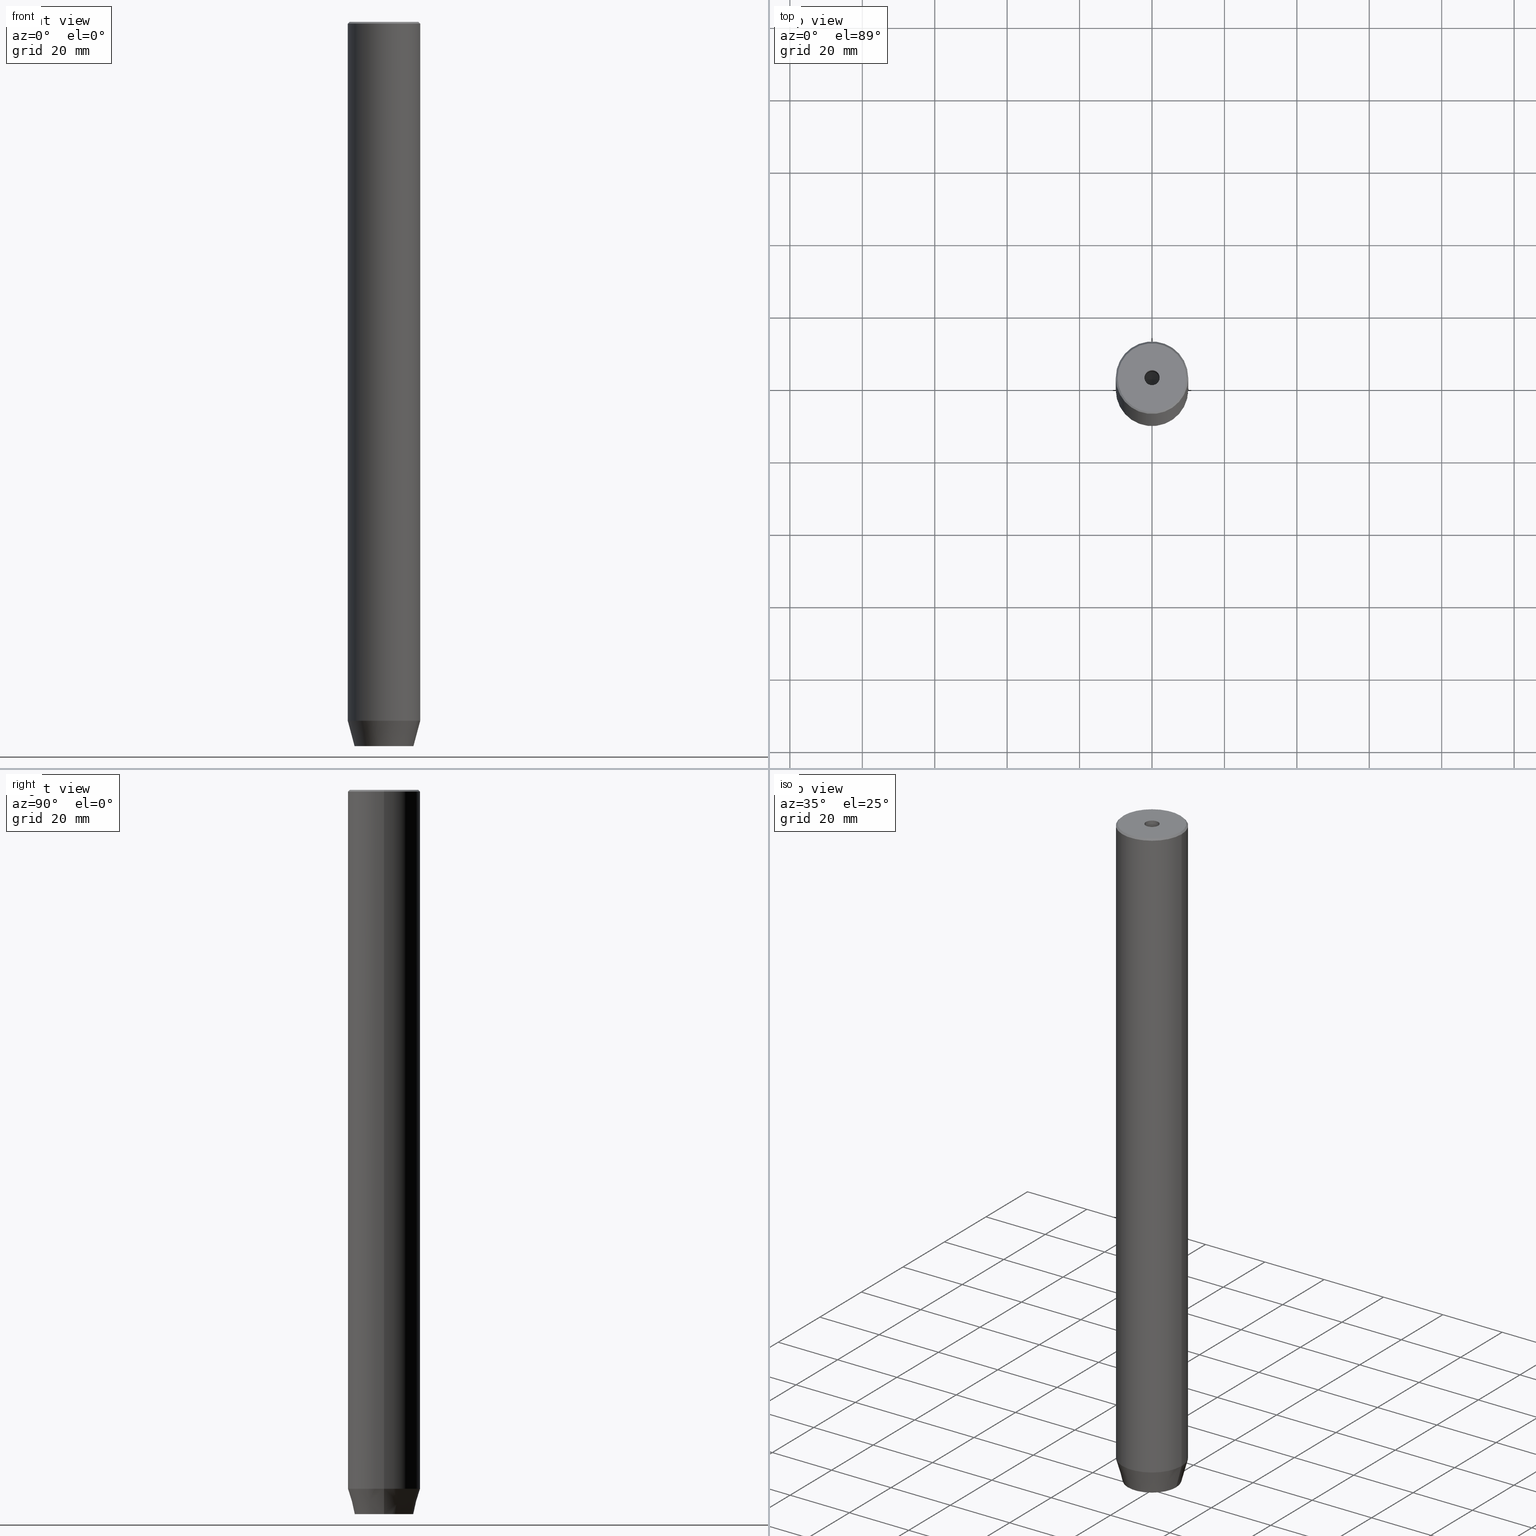
[diagram: canonical four-view strip — front | top / right | iso, engineering-drawing reading convention]
A machine part, canonical four-view strip (front | top / right | iso — engineering-drawing reading convention). The complete STEP part file that produces these views, byte-faithful:
ISO-10303-21;
HEADER;
FILE_DESCRIPTION (( 'STEP AP203' ),
    '1' );
FILE_NAME ('70f7.STEP',
    '2024-01-02T19:03:45',
    ( '' ),
    ( '' ),
    'SwSTEP 2.0',
    'SolidWorks 2019',
    '' );
FILE_SCHEMA (( 'CONFIG_CONTROL_DESIGN' ));
ENDSEC;

DATA;
#1 = LOCAL_TIME ( 20, 3, 45.00000000000000000, #302 ) ;
#2 = LINE ( 'NONE', #389, #162 ) ;
#3 = APPROVAL_ROLE ( '' ) ;
#4 = FACE_OUTER_BOUND ( 'NONE', #33, .T. ) ;
#5 = DIRECTION ( 'NONE',  ( 1.000000000000000000, 0.000000000000000000, 0.000000000000000000 ) ) ;
#6 = PERSON_AND_ORGANIZATION_ROLE ( 'design_supplier' ) ;
#7 = VERTEX_POINT ( 'NONE', #228 ) ;
#8 = CARTESIAN_POINT ( 'NONE',  ( 0.000000000000000000, 0.000000000000000000, -0.4999999999999987232 ) ) ;
#9 = PERSON_AND_ORGANIZATION ( #446, #246 ) ;
#10 = DIRECTION ( 'NONE',  ( -0.000000000000000000, -0.000000000000000000, 1.000000000000000000 ) ) ;
#11 = AXIS2_PLACEMENT_3D ( 'NONE', #482, #445, #156 ) ;
#12 = ORIENTED_EDGE ( 'NONE', *, *, #475, .T. ) ;
#13 = AXIS2_PLACEMENT_3D ( 'NONE', #433, #299, #342 ) ;
#14 = LOCAL_TIME ( 20, 3, 45.00000000000000000, #27 ) ;
#15 = CARTESIAN_POINT ( 'NONE',  ( -2.099999999999995648, 2.571758278209436040E-16, -25.00000000000000000 ) ) ;
#16 = DIRECTION ( 'NONE',  ( -0.5000000000000003331, -0.8660254037844385966, 0.000000000000000000 ) ) ;
#17 = LINE ( 'NONE', #119, #415 ) ;
#18 = CARTESIAN_POINT ( 'NONE',  ( 10.00000000000000000, 0.000000000000000000, -0.4999999999999987232 ) ) ;
#19 = CYLINDRICAL_SURFACE ( 'NONE', #546, 10.00000000000000000 ) ;
#20 = APPROVAL_DATE_TIME ( #406, #358 ) ;
#21 = DIRECTION ( 'NONE',  ( 0.8571673007021108903, 0.000000000000000000, 0.5150380749100565980 ) ) ;
#22 = EDGE_CURVE ( 'NONE', #509, #370, #180, .T. ) ;
#23 = APPROVAL_ROLE ( '' ) ;
#24 = LINE ( 'NONE', #203, #257 ) ;
#25 = LINE ( 'NONE', #436, #183 ) ;
#26 = CARTESIAN_POINT ( 'NONE',  ( 4.000000000000000000, 2.309401076758503368, -200.0000000000000000 ) ) ;
#27 = COORDINATED_UNIVERSAL_TIME_OFFSET ( 1, 0, .AHEAD. ) ;
#28 = AXIS2_PLACEMENT_3D ( 'NONE', #349, #564, #307 ) ;
#29 = LINE ( 'NONE', #393, #234 ) ;
#30 = DIRECTION ( 'NONE',  ( -0.000000000000000000, -0.000000000000000000, 1.000000000000000000 ) ) ;
#31 = FACE_OUTER_BOUND ( 'NONE', #182, .T. ) ;
#32 = ORIENTED_EDGE ( 'NONE', *, *, #518, .T. ) ;
#33 = EDGE_LOOP ( 'NONE', ( #412, #461, #541, #139 ) ) ;
#34 = VECTOR ( 'NONE', #35, 1000.000000000000000 ) ;
#35 = DIRECTION ( 'NONE',  ( -0.000000000000000000, -0.000000000000000000, -1.000000000000000000 ) ) ;
#36 = ADVANCED_FACE ( 'NONE', ( #4 ), #188, .F. ) ;
#37 = DIRECTION ( 'NONE',  ( 1.000000000000000000, 0.000000000000000000, 0.000000000000000000 ) ) ;
#38 = ORIENTED_EDGE ( 'NONE', *, *, #164, .T. ) ;
#39 = ORIENTED_EDGE ( 'NONE', *, *, #83, .F. ) ;
#40 = ORIENTED_EDGE ( 'NONE', *, *, #324, .F. ) ;
#41 = AXIS2_PLACEMENT_3D ( 'NONE', #519, #64, #391 ) ;
#42 = CC_DESIGN_APPROVAL ( #248, ( #336 ) ) ;
#43 = ORIENTED_EDGE ( 'NONE', *, *, #518, .F. ) ;
#44 = VERTEX_POINT ( 'NONE', #18 ) ;
#45 = ORIENTED_EDGE ( 'NONE', *, *, #221, .F. ) ;
#46 = EDGE_CURVE ( 'NONE', #434, #309, #534, .T. ) ;
#47 = LINE ( 'NONE', #189, #388 ) ;
#48 = ORIENTED_EDGE ( 'NONE', *, *, #46, .F. ) ;
#49 = LINE ( 'NONE', #474, #76 ) ;
#50 = EDGE_LOOP ( 'NONE', ( #457, #103, #423, #40 ) ) ;
#51 = PRODUCT_DEFINITION_SHAPE ( 'NONE', 'NONE',  #387 ) ;
#52 = CARTESIAN_POINT ( 'NONE',  ( 2.000000000000000888, -3.464101615137754386, -197.2000000000000171 ) ) ;
#53 = VERTEX_POINT ( 'NONE', #569 ) ;
#54 = ORIENTED_EDGE ( 'NONE', *, *, #224, .F. ) ;
#55 = VECTOR ( 'NONE', #444, 1000.000000000000000 ) ;
#56 = CARTESIAN_POINT ( 'NONE',  ( 0.000000000000000000, 0.000000000000000000, 0.000000000000000000 ) ) ;
#57 = ADVANCED_FACE ( 'NONE', ( #153, #213 ), #214, .T. ) ;
#58 = PERSON_AND_ORGANIZATION_ROLE ( 'classification_officer' ) ;
#59 = FACE_OUTER_BOUND ( 'NONE', #511, .T. ) ;
#60 = ORIENTED_EDGE ( 'NONE', *, *, #46, .T. ) ;
#61 = DIRECTION ( 'NONE',  ( -1.000000000000000000, 0.000000000000000000, 0.000000000000000000 ) ) ;
#62 = DIRECTION ( 'NONE',  ( 1.000000000000000000, 0.000000000000000000, 0.000000000000000000 ) ) ;
#63 = ORIENTED_EDGE ( 'NONE', *, *, #528, .T. ) ;
#64 = DIRECTION ( 'NONE',  ( -0.000000000000000000, -0.000000000000000000, 1.000000000000000000 ) ) ;
#65 = DIRECTION ( 'NONE',  ( -1.000000000000000000, 0.000000000000000000, -0.000000000000000000 ) ) ;
#66 = FACE_OUTER_BOUND ( 'NONE', #227, .T. ) ;
#67 = VECTOR ( 'NONE', #428, 1000.000000000000000 ) ;
#68 = EDGE_LOOP ( 'NONE', ( #32, #319, #192, #417 ) ) ;
#69 = DIRECTION ( 'NONE',  ( 1.000000000000000000, 0.000000000000000000, 0.000000000000000000 ) ) ;
#70 = PLANE ( 'NONE',  #28 ) ;
#71 = ADVANCED_FACE ( 'NONE', ( #163 ), #70, .F. ) ;
#72 = ORIENTED_EDGE ( 'NONE', *, *, #521, .F. ) ;
#73 = DIRECTION ( 'NONE',  ( 0.8660254037844384856, -0.5000000000000002220, 0.000000000000000000 ) ) ;
#74 = CARTESIAN_POINT ( 'NONE',  ( -4.000000000000000000, 0.000000000000000000, -197.2000000000000171 ) ) ;
#75 = DATE_TIME_ROLE ( 'creation_date' ) ;
#76 = VECTOR ( 'NONE', #10, 1000.000000000000000 ) ;
#77 = CC_DESIGN_APPROVAL ( #358, ( #387 ) ) ;
#78 = CARTESIAN_POINT ( 'NONE',  ( -4.000000000000000000, 0.000000000000000000, -197.2000000000000171 ) ) ;
#79 = EDGE_CURVE ( 'NONE', #201, #509, #80, .T. ) ;
#80 = LINE ( 'NONE', #395, #448 ) ;
#81 = CARTESIAN_POINT ( 'NONE',  ( 2.099999999999996980, 0.000000000000000000, 0.000000000000000000 ) ) ;
#82 = EDGE_LOOP ( 'NONE', ( #106, #330, #151, #38 ) ) ;
#83 = EDGE_CURVE ( 'NONE', #53, #89, #453, .T. ) ;
#84 = DIRECTION ( 'NONE',  ( 1.000000000000000000, 0.000000000000000000, 0.000000000000000000 ) ) ;
#85 = AXIS2_PLACEMENT_3D ( 'NONE', #167, #409, #269 ) ;
#86 = ORIENTED_EDGE ( 'NONE', *, *, #252, .T. ) ;
#87 = DIRECTION ( 'NONE',  ( 1.000000000000000000, 0.000000000000000000, 0.000000000000000000 ) ) ;
#88 = LINE ( 'NONE', #416, #135 ) ;
#89 = VERTEX_POINT ( 'NONE', #210 ) ;
#90 = DIRECTION ( 'NONE',  ( 0.8660254037844387076, 0.5000000000000001110, 0.000000000000000000 ) ) ;
#91 = ORIENTED_EDGE ( 'NONE', *, *, #537, .F. ) ;
#92 = CIRCLE ( 'NONE', #410, 10.00000000000000000 ) ;
#93 = ORIENTED_EDGE ( 'NONE', *, *, #137, .F. ) ;
#94 = AXIS2_PLACEMENT_3D ( 'NONE', #355, #297, #572 ) ;
#95 = LOCAL_TIME ( 20, 3, 45.00000000000000000, #542 ) ;
#96 = ADVANCED_FACE ( 'NONE', ( #405 ), #194, .T. ) ;
#97 = ORIENTED_EDGE ( 'NONE', *, *, #462, .T. ) ;
#98 = DIRECTION ( 'NONE',  ( -0.8660254037844384856, 0.5000000000000002220, 0.000000000000000000 ) ) ;
#99 = VERTEX_POINT ( 'NONE', #523 ) ;
#100 = ORIENTED_EDGE ( 'NONE', *, *, #508, .T. ) ;
#101 = EDGE_CURVE ( 'NONE', #53, #44, #24, .T. ) ;
#102 = DIRECTION ( 'NONE',  ( 0.8660254037844384856, 0.5000000000000002220, 0.000000000000000000 ) ) ;
#103 = ORIENTED_EDGE ( 'NONE', *, *, #352, .T. ) ;
#104 = CIRCLE ( 'NONE', #449, 2.099999999999995648 ) ;
#105 = DIRECTION ( 'NONE',  ( -1.000000000000000000, 0.000000000000000000, -0.000000000000000000 ) ) ;
#106 = ORIENTED_EDGE ( 'NONE', *, *, #521, .T. ) ;
#107 = MECHANICAL_CONTEXT ( 'NONE', #318, 'mechanical' ) ;
#108 = DIRECTION ( 'NONE',  ( -0.000000000000000000, -0.000000000000000000, 1.000000000000000000 ) ) ;
#109 = CARTESIAN_POINT ( 'NONE',  ( -4.000000000000000000, 2.309401076758503368, -200.0000000000000000 ) ) ;
#110 = APPROVAL_DATE_TIME ( #136, #450 ) ;
#111 = CARTESIAN_POINT ( 'NONE',  ( 0.000000000000000000, 0.000000000000000000, -197.2000000000000171 ) ) ;
#112 = CARTESIAN_POINT ( 'NONE',  ( 0.000000000000000000, 0.000000000000000000, -200.0000000000000000 ) ) ;
#113 = ORIENTED_EDGE ( 'NONE', *, *, #241, .F. ) ;
#114 = CYLINDRICAL_SURFACE ( 'NONE', #41, 2.099999999999996980 ) ;
#115 = ADVANCED_FACE ( 'NONE', ( #348 ), #301, .F. ) ;
#116 = FACE_OUTER_BOUND ( 'NONE', #148, .T. ) ;
#117 = AXIS2_PLACEMENT_3D ( 'NONE', #376, #368, #61 ) ;
#118 = DATE_AND_TIME ( #158, #1 ) ;
#119 = CARTESIAN_POINT ( 'NONE',  ( -4.000000000000000000, 2.309401076758503368, -197.2000000000000171 ) ) ;
#120 = CARTESIAN_POINT ( 'NONE',  ( 2.000000000000000444, 3.464101615137754386, -197.2000000000000171 ) ) ;
#121 = LINE ( 'NONE', #159, #411 ) ;
#122 = DIRECTION ( 'NONE',  ( 1.000000000000000000, 0.000000000000000000, 0.000000000000000000 ) ) ;
#123 = EDGE_CURVE ( 'NONE', #44, #517, #92, .T. ) ;
#124 = CARTESIAN_POINT ( 'NONE',  ( 2.000000000000000888, -3.464101615137754386, -200.0000000000000000 ) ) ;
#125 = VECTOR ( 'NONE', #426, 1000.000000000000114 ) ;
#126 = VECTOR ( 'NONE', #327, 1000.000000000000000 ) ;
#127 = CYLINDRICAL_SURFACE ( 'NONE', #354, 10.00000000000000000 ) ;
#128 = FACE_OUTER_BOUND ( 'NONE', #317, .T. ) ;
#129 = ORIENTED_EDGE ( 'NONE', *, *, #131, .F. ) ;
#130 = FACE_OUTER_BOUND ( 'NONE', #451, .T. ) ;
#131 = EDGE_CURVE ( 'NONE', #378, #343, #477, .T. ) ;
#132 = DIRECTION ( 'NONE',  ( -0.000000000000000000, -0.000000000000000000, 1.000000000000000000 ) ) ;
#133 = CARTESIAN_POINT ( 'NONE',  ( 2.168404344971008868E-16, 4.618802153517005848, -200.0000000000000000 ) ) ;
#134 = CARTESIAN_POINT ( 'NONE',  ( 4.000000000000000000, -2.309401076758502480, -200.0000000000000000 ) ) ;
#135 = VECTOR ( 'NONE', #90, 999.9999999999998863 ) ;
#136 = DATE_AND_TIME ( #147, #95 ) ;
#137 = EDGE_CURVE ( 'NONE', #343, #378, #374, .T. ) ;
#138 = SECURITY_CLASSIFICATION_LEVEL ( 'unclassified' ) ;
#139 = ORIENTED_EDGE ( 'NONE', *, *, #500, .T. ) ;
#140 = LINE ( 'NONE', #322, #566 ) ;
#141 = VERTEX_POINT ( 'NONE', #394 ) ;
#142 = ORIENTED_EDGE ( 'NONE', *, *, #360, .F. ) ;
#143 = ADVANCED_FACE ( 'NONE', ( #300 ), #175, .F. ) ;
#144 = ORIENTED_EDGE ( 'NONE', *, *, #79, .F. ) ;
#145 = PLANE ( 'NONE',  #535 ) ;
#146 = EDGE_LOOP ( 'NONE', ( #60, #218, #328, #466 ) ) ;
#147 = CALENDAR_DATE ( 2024, 2, 1 ) ;
#148 = EDGE_LOOP ( 'NONE', ( #452, #45, #144, #169 ) ) ;
#149 = CARTESIAN_POINT ( 'NONE',  ( -2.000000000000000000, 3.464101615137754830, -197.2000000000000171 ) ) ;
#150 = CIRCLE ( 'NONE', #556, 2.099999999999995648 ) ;
#151 = ORIENTED_EDGE ( 'NONE', *, *, #316, .F. ) ;
#152 = DIRECTION ( 'NONE',  ( -0.000000000000000000, -0.000000000000000000, 1.000000000000000000 ) ) ;
#153 = FACE_BOUND ( 'NONE', #292, .T. ) ;
#154 = EDGE_CURVE ( 'NONE', #309, #274, #155, .T. ) ;
#155 = LINE ( 'NONE', #479, #587 ) ;
#156 = DIRECTION ( 'NONE',  ( 1.000000000000000000, 0.000000000000000000, 0.000000000000000000 ) ) ;
#157 = PLANE ( 'NONE',  #94 ) ;
#158 = CALENDAR_DATE ( 2024, 2, 1 ) ;
#159 = CARTESIAN_POINT ( 'NONE',  ( -9.500000000000008882, 0.000000000000000000, 0.000000000000000000 ) ) ;
#160 = VERTEX_POINT ( 'NONE', #26 ) ;
#161 = DIRECTION ( 'NONE',  ( -0.000000000000000000, -0.000000000000000000, 1.000000000000000000 ) ) ;
#162 = VECTOR ( 'NONE', #329, 1000.000000000000000 ) ;
#163 = FACE_OUTER_BOUND ( 'NONE', #82, .T. ) ;
#164 = EDGE_CURVE ( 'NONE', #359, #177, #17, .T. ) ;
#165 = CARTESIAN_POINT ( 'NONE',  ( 4.000000000000000000, 2.309401076758503368, -197.2000000000000171 ) ) ;
#166 = CARTESIAN_POINT ( 'NONE',  ( -4.000000000000000000, -2.309401076758503368, -197.2000000000000171 ) ) ;
#167 = CARTESIAN_POINT ( 'NONE',  ( 0.000000000000000000, 0.000000000000000000, -200.0000000000000000 ) ) ;
#168 = AXIS2_PLACEMENT_3D ( 'NONE', #365, #132, #84 ) ;
#169 = ORIENTED_EDGE ( 'NONE', *, *, #408, .T. ) ;
#170 = FACE_OUTER_BOUND ( 'NONE', #510, .T. ) ;
#171 = ADVANCED_FACE ( 'NONE', ( #206 ), #114, .F. ) ;
#172 = LINE ( 'NONE', #81, #311 ) ;
#173 = CARTESIAN_POINT ( 'NONE',  ( 0.000000000000000000, 0.000000000000000000, 0.000000000000000000 ) ) ;
#174 = DIRECTION ( 'NONE',  ( 0.000000000000000000, 1.000000000000000000, 0.000000000000000000 ) ) ;
#175 = CONICAL_SURFACE ( 'NONE', #225, 2.099999999999995648, 1.029744258676651647 ) ;
#176 = VERTEX_POINT ( 'NONE', #339 ) ;
#177 = VERTEX_POINT ( 'NONE', #109 ) ;
#178 = ADVANCED_FACE ( 'NONE', ( #293 ), #244, .T. ) ;
#179 = CARTESIAN_POINT ( 'NONE',  ( -4.000000000000000000, -2.309401076758503368, -197.2000000000000171 ) ) ;
#180 = LINE ( 'NONE', #236, #125 ) ;
#181 = CARTESIAN_POINT ( 'NONE',  ( 0.000000000000000000, 0.000000000000000000, -25.00000000000000000 ) ) ;
#182 = EDGE_LOOP ( 'NONE', ( #238, #97, #54, #142 ) ) ;
#183 = VECTOR ( 'NONE', #259, 999.9999999999998863 ) ;
#184 = EDGE_CURVE ( 'NONE', #176, #89, #47, .T. ) ;
#185 = LOCAL_TIME ( 20, 3, 45.00000000000000000, #533 ) ;
#186 = EDGE_LOOP ( 'NONE', ( #113, #386, #455 ) ) ;
#187 = VERTEX_POINT ( 'NONE', #179 ) ;
#188 = PLANE ( 'NONE',  #465 ) ;
#189 = CARTESIAN_POINT ( 'NONE',  ( -10.00000000000000000, 1.224646799147353256E-15, -193.0000000000000000 ) ) ;
#190 = CALENDAR_DATE ( 2024, 2, 1 ) ;
#191 = CARTESIAN_POINT ( 'NONE',  ( 0.000000000000000000, 0.000000000000000000, 0.000000000000000000 ) ) ;
#192 = ORIENTED_EDGE ( 'NONE', *, *, #331, .F. ) ;
#193 = DIRECTION ( 'NONE',  ( 1.000000000000000000, 0.000000000000000000, 0.000000000000000000 ) ) ;
#194 = CONICAL_SURFACE ( 'NONE', #11, 10.00000000000000000, 0.2617993877991500740 ) ;
#195 = AXIS2_PLACEMENT_3D ( 'NONE', #8, #281, #193 ) ;
#196 = DIRECTION ( 'NONE',  ( -0.000000000000000000, -0.000000000000000000, 1.000000000000000000 ) ) ;
#197 = ORIENTED_EDGE ( 'NONE', *, *, #224, .T. ) ;
#198 = DIRECTION ( 'NONE',  ( 1.000000000000000000, 0.000000000000000000, 0.000000000000000000 ) ) ;
#199 = CARTESIAN_POINT ( 'NONE',  ( 0.000000000000000000, 0.000000000000000000, -1.990051048614449116E-16 ) ) ;
#200 = CC_DESIGN_PERSON_AND_ORGANIZATION_ASSIGNMENT ( #563, #6, ( #336 ) ) ;
#201 = VERTEX_POINT ( 'NONE', #551 ) ;
#202 = DIRECTION ( 'NONE',  ( 0.000000000000000000, 0.000000000000000000, -1.000000000000000000 ) ) ;
#203 = CARTESIAN_POINT ( 'NONE',  ( 10.00000000000000000, 0.000000000000000000, 0.000000000000000000 ) ) ;
#204 = LINE ( 'NONE', #120, #524 ) ;
#205 = CALENDAR_DATE ( 2024, 2, 1 ) ;
#206 = FACE_OUTER_BOUND ( 'NONE', #581, .T. ) ;
#207 = VECTOR ( 'NONE', #485, 1000.000000000000114 ) ;
#208 = ADVANCED_FACE ( 'NONE', ( #458 ), #145, .F. ) ;
#209 = CIRCLE ( 'NONE', #539, 9.500000000000008882 ) ;
#210 = CARTESIAN_POINT ( 'NONE',  ( -10.00000000000000000, 1.224646799147353256E-15, -193.0000000000000000 ) ) ;
#211 = AXIS2_PLACEMENT_3D ( 'NONE', #253, #277, #326 ) ;
#212 = PRODUCT_RELATED_PRODUCT_CATEGORY ( 'detail', '', ( #265 ) ) ;
#213 = FACE_OUTER_BOUND ( 'NONE', #447, .T. ) ;
#214 = PLANE ( 'NONE',  #295 ) ;
#215 = ORIENTED_EDGE ( 'NONE', *, *, #360, .T. ) ;
#216 = VECTOR ( 'NONE', #499, 1000.000000000000000 ) ;
#217 = EDGE_CURVE ( 'NONE', #7, #335, #150, .T. ) ;
#218 = ORIENTED_EDGE ( 'NONE', *, *, #226, .F. ) ;
#219 = ADVANCED_BREP_SHAPE_REPRESENTATION ( '70f7', ( #271, #211 ), #488 ) ;
#220 = FACE_OUTER_BOUND ( 'NONE', #586, .T. ) ;
#221 = EDGE_CURVE ( 'NONE', #509, #434, #463, .T. ) ;
#222 = CARTESIAN_POINT ( 'NONE',  ( -4.000000000000000000, 0.000000000000000000, -200.0000000000000000 ) ) ;
#223 = ORIENTED_EDGE ( 'NONE', *, *, #369, .F. ) ;
#224 = EDGE_CURVE ( 'NONE', #517, #44, #573, .T. ) ;
#225 = AXIS2_PLACEMENT_3D ( 'NONE', #346, #526, #558 ) ;
#226 = EDGE_CURVE ( 'NONE', #370, #309, #140, .T. ) ;
#227 = EDGE_LOOP ( 'NONE', ( #233, #239, #197, #366 ) ) ;
#228 = CARTESIAN_POINT ( 'NONE',  ( 2.099999999999995648, 0.000000000000000000, -25.00000000000000000 ) ) ;
#229 = EDGE_CURVE ( 'NONE', #335, #7, #104, .T. ) ;
#230 = ORIENTED_EDGE ( 'NONE', *, *, #312, .F. ) ;
#231 = PERSON_AND_ORGANIZATION_ROLE ( 'design_owner' ) ;
#232 = DIRECTION ( 'NONE',  ( -0.000000000000000000, -0.000000000000000000, 1.000000000000000000 ) ) ;
#233 = ORIENTED_EDGE ( 'NONE', *, *, #83, .T. ) ;
#234 = VECTOR ( 'NONE', #21, 1000.000000000000114 ) ;
#235 = PERSON_AND_ORGANIZATION ( #446, #246 ) ;
#236 = CARTESIAN_POINT ( 'NONE',  ( 2.000000000000000888, -3.464101615137754386, -197.2000000000000171 ) ) ;
#237 = CARTESIAN_POINT ( 'NONE',  ( 4.336808689942017736E-16, -4.618802153517006737, -200.0000000000000000 ) ) ;
#238 = ORIENTED_EDGE ( 'NONE', *, *, #298, .F. ) ;
#239 = ORIENTED_EDGE ( 'NONE', *, *, #382, .T. ) ;
#240 = DIRECTION ( 'NONE',  ( 0.5000000000000003331, -0.8660254037844385966, 0.000000000000000000 ) ) ;
#241 = EDGE_CURVE ( 'NONE', #141, #335, #286, .T. ) ;
#242 = LINE ( 'NONE', #553, #67 ) ;
#243 = PLANE ( 'NONE',  #268 ) ;
#244 = CONICAL_SURFACE ( 'NONE', #117, 9.500000000000008882, 0.7853981633974412846 ) ;
#245 = DIRECTION ( 'NONE',  ( 1.000000000000000000, 0.000000000000000000, 0.000000000000000000 ) ) ;
#246 = ORGANIZATION ( 'NEUR�EN�', 'NEUR�EN�', '' ) ;
#247 = DIRECTION ( 'NONE',  ( -0.000000000000000000, -0.000000000000000000, 1.000000000000000000 ) ) ;
#248 = APPROVAL ( #303, 'NEUR�EN�' ) ;
#249 = UNCERTAINTY_MEASURE_WITH_UNIT (LENGTH_MEASURE( 1.000000000000000082E-05 ), #567, 'distance_accuracy_value', 'NONE');
#250 = DIRECTION ( 'NONE',  ( -0.000000000000000000, -0.000000000000000000, -1.000000000000000000 ) ) ;
#251 = CARTESIAN_POINT ( 'NONE',  ( 2.099999999999998757, 0.000000000000000000, -1.990051048614449116E-16 ) ) ;
#252 = EDGE_CURVE ( 'NONE', #370, #187, #380, .T. ) ;
#253 = CARTESIAN_POINT ( 'NONE',  ( 0.000000000000000000, 0.000000000000000000, 0.000000000000000000 ) ) ;
#254 = LINE ( 'NONE', #261, #55 ) ;
#255 = CARTESIAN_POINT ( 'NONE',  ( 0.000000000000000000, 0.000000000000000000, -0.4999999999999987232 ) ) ;
#256 = DIRECTION ( 'NONE',  ( -1.000000000000000000, 0.000000000000000000, 0.000000000000000000 ) ) ;
#257 = VECTOR ( 'NONE', #401, 1000.000000000000000 ) ;
#258 = VECTOR ( 'NONE', #561, 1000.000000000000000 ) ;
#259 = DIRECTION ( 'NONE',  ( 0.7071067811865425767, 8.659560562354874926E-17, -0.7071067811865525687 ) ) ;
#260 = PERSON_AND_ORGANIZATION ( #446, #246 ) ;
#261 = CARTESIAN_POINT ( 'NONE',  ( 10.00000000000000000, 0.000000000000000000, -193.0000000000000000 ) ) ;
#262 = CARTESIAN_POINT ( 'NONE',  ( 0.000000000000000000, 0.000000000000000000, -193.0000000000000000 ) ) ;
#263 = EDGE_CURVE ( 'NONE', #516, #160, #2, .T. ) ;
#264 = ORIENTED_EDGE ( 'NONE', *, *, #252, .F. ) ;
#265 = PRODUCT ( '70f7', '70f7', '', ( #107 ) ) ;
#266 = ORIENTED_EDGE ( 'NONE', *, *, #298, .T. ) ;
#267 = AXIS2_PLACEMENT_3D ( 'NONE', #402, #527, #476 ) ;
#268 = AXIS2_PLACEMENT_3D ( 'NONE', #481, #16, #73 ) ;
#269 = DIRECTION ( 'NONE',  ( 1.000000000000000000, 0.000000000000000000, 0.000000000000000000 ) ) ;
#270 = LINE ( 'NONE', #222, #403 ) ;
#271 = MANIFOLD_SOLID_BREP ( 'Vrt�k z�vitn�ku pro M5 z�vit1', #305 ) ;
#272 = VERTEX_POINT ( 'NONE', #557 ) ;
#273 = ADVANCED_FACE ( 'NONE', ( #469 ), #276, .F. ) ;
#274 = VERTEX_POINT ( 'NONE', #279 ) ;
#275 = AXIS2_PLACEMENT_3D ( 'NONE', #262, #30, #122 ) ;
#276 = CONICAL_SURFACE ( 'NONE', #442, 2.099999999999995648, 1.029744258676651647 ) ;
#277 = DIRECTION ( 'NONE',  ( 0.000000000000000000, 0.000000000000000000, 1.000000000000000000 ) ) ;
#278 = ORIENTED_EDGE ( 'NONE', *, *, #154, .T. ) ;
#279 = CARTESIAN_POINT ( 'NONE',  ( -4.000000000000000000, -2.309401076758503368, -200.0000000000000000 ) ) ;
#280 = ORIENTED_EDGE ( 'NONE', *, *, #184, .T. ) ;
#281 = DIRECTION ( 'NONE',  ( 0.000000000000000000, 0.000000000000000000, -1.000000000000000000 ) ) ;
#282 = DATE_TIME_ROLE ( 'classification_date' ) ;
#283 = FACE_OUTER_BOUND ( 'NONE', #310, .T. ) ;
#284 = ORIENTED_EDGE ( 'NONE', *, *, #585, .F. ) ;
#285 = APPROVAL_STATUS ( 'not_yet_approved' ) ;
#286 = LINE ( 'NONE', #547, #467 ) ;
#287 = PERSON_AND_ORGANIZATION ( #446, #246 ) ;
#288 = DIRECTION ( 'NONE',  ( 0.000000000000000000, 0.000000000000000000, 1.000000000000000000 ) ) ;
#289 = DIRECTION ( 'NONE',  ( 1.000000000000000000, 0.000000000000000000, 0.000000000000000000 ) ) ;
#290 = CARTESIAN_POINT ( 'NONE',  ( 2.000000000000000444, 3.464101615137754386, -197.2000000000000171 ) ) ;
#291 = DATE_AND_TIME ( #484, #14 ) ;
#292 = EDGE_LOOP ( 'NONE', ( #72, #43, #377, #48, #230, #503 ) ) ;
#293 = FACE_OUTER_BOUND ( 'NONE', #338, .T. ) ;
#294 = PERSON_AND_ORGANIZATION ( #446, #246 ) ;
#295 = AXIS2_PLACEMENT_3D ( 'NONE', #489, #435, #65 ) ;
#296 = AXIS2_PLACEMENT_3D ( 'NONE', #199, #161, #473 ) ;
#297 = DIRECTION ( 'NONE',  ( 1.000000000000000000, 0.000000000000000000, -0.000000000000000000 ) ) ;
#298 = EDGE_CURVE ( 'NONE', #459, #272, #504, .T. ) ;
#299 = DIRECTION ( 'NONE',  ( -0.000000000000000000, -0.000000000000000000, 1.000000000000000000 ) ) ;
#300 = FACE_OUTER_BOUND ( 'NONE', #186, .T. ) ;
#301 = PLANE ( 'NONE',  #353 ) ;
#302 = COORDINATED_UNIVERSAL_TIME_OFFSET ( 1, 0, .AHEAD. ) ;
#303 = APPROVAL_STATUS ( 'not_yet_approved' ) ;
#304 = CARTESIAN_POINT ( 'NONE',  ( -10.00000000000000000, 1.224646799147353256E-15, 0.000000000000000000 ) ) ;
#305 = CLOSED_SHELL ( 'NONE', ( #171, #273, #483, #413, #493, #57, #437, #424, #96, #178, #71, #115, #578, #208, #443, #36, #540, #143, #562 ) ) ;
#306 = VECTOR ( 'NONE', #490, 1000.000000000000000 ) ;
#307 = DIRECTION ( 'NONE',  ( -0.8660254037844385966, -0.4999999999999999445, 0.000000000000000000 ) ) ;
#308 = CARTESIAN_POINT ( 'NONE',  ( 0.000000000000000000, 0.000000000000000000, 0.000000000000000000 ) ) ;
#309 = VERTEX_POINT ( 'NONE', #237 ) ;
#310 = EDGE_LOOP ( 'NONE', ( #390, #12, #544, #583, #86, #362 ) ) ;
#311 = VECTOR ( 'NONE', #577, 1000.000000000000000 ) ;
#312 = EDGE_CURVE ( 'NONE', #160, #434, #242, .T. ) ;
#313 = AXIS2_PLACEMENT_3D ( 'NONE', #111, #464, #105 ) ;
#314 = PLANE ( 'NONE',  #333 ) ;
#315 = ORIENTED_EDGE ( 'NONE', *, *, #462, .F. ) ;
#316 = EDGE_CURVE ( 'NONE', #359, #579, #384, .T. ) ;
#317 = EDGE_LOOP ( 'NONE', ( #278, #552, #264, #575 ) ) ;
#318 = APPLICATION_CONTEXT ( 'configuration controlled 3d designs of mechanical parts and assemblies' ) ;
#319 = ORIENTED_EDGE ( 'NONE', *, *, #164, .F. ) ;
#320 = VECTOR ( 'NONE', #98, 1000.000000000000114 ) ;
#321 = LOCAL_TIME ( 20, 3, 45.00000000000000000, #456 ) ;
#322 = CARTESIAN_POINT ( 'NONE',  ( 4.336808689942017736E-16, -4.618802153517006737, -197.2000000000000171 ) ) ;
#323 = ORIENTED_EDGE ( 'NONE', *, *, #324, .T. ) ;
#324 = EDGE_CURVE ( 'NONE', #89, #53, #487, .T. ) ;
#325 = ORIENTED_EDGE ( 'NONE', *, *, #101, .T. ) ;
#326 = DIRECTION ( 'NONE',  ( 1.000000000000000000, 0.000000000000000000, 0.000000000000000000 ) ) ;
#327 = DIRECTION ( 'NONE',  ( -0.000000000000000000, -0.000000000000000000, -1.000000000000000000 ) ) ;
#328 = ORIENTED_EDGE ( 'NONE', *, *, #22, .F. ) ;
#329 = DIRECTION ( 'NONE',  ( 0.8660254037844385966, -0.5000000000000001110, 0.000000000000000000 ) ) ;
#330 = ORIENTED_EDGE ( 'NONE', *, *, #500, .F. ) ;
#331 = EDGE_CURVE ( 'NONE', #187, #359, #438, .T. ) ;
#332 = APPROVAL_ROLE ( '' ) ;
#333 = AXIS2_PLACEMENT_3D ( 'NONE', #308, #498, #87 ) ;
#334 = DIRECTION ( 'NONE',  ( 0.8660254037844387076, 0.5000000000000001110, 0.000000000000000000 ) ) ;
#335 = VERTEX_POINT ( 'NONE', #15 ) ;
#336 = PRODUCT_DEFINITION_FORMATION_WITH_SPECIFIED_SOURCE ( 'LIBOVOLN�', '', #265, .NOT_KNOWN. ) ;
#337 = DIRECTION ( 'NONE',  ( 1.000000000000000000, 0.000000000000000000, 0.000000000000000000 ) ) ;
#338 = EDGE_LOOP ( 'NONE', ( #315, #91, #215, #582 ) ) ;
#339 = CARTESIAN_POINT ( 'NONE',  ( -8.124355652982135467, 1.109796706851640556E-15, -200.0000000000000000 ) ) ;
#340 = PLANE ( 'NONE',  #313 ) ;
#341 = PERSON_AND_ORGANIZATION ( #446, #246 ) ;
#342 = DIRECTION ( 'NONE',  ( 1.000000000000000000, 0.000000000000000000, 0.000000000000000000 ) ) ;
#343 = VERTEX_POINT ( 'NONE', #251 ) ;
#344 = DIRECTION ( 'NONE',  ( -0.8660254037844384856, 0.5000000000000002220, 0.000000000000000000 ) ) ;
#345 = ORIENTED_EDGE ( 'NONE', *, *, #418, .F. ) ;
#346 = CARTESIAN_POINT ( 'NONE',  ( 0.000000000000000000, 0.000000000000000000, -25.00000000000000000 ) ) ;
#347 = CC_DESIGN_SECURITY_CLASSIFICATION ( #536, ( #336 ) ) ;
#348 = FACE_OUTER_BOUND ( 'NONE', #68, .T. ) ;
#349 = CARTESIAN_POINT ( 'NONE',  ( -2.000000000000000000, 3.464101615137754830, -197.2000000000000171 ) ) ;
#350 = DIRECTION ( 'NONE',  ( 0.8660254037844385966, -0.5000000000000001110, 0.000000000000000000 ) ) ;
#351 = DIRECTION ( 'NONE',  ( -0.7071067811865425767, 0.000000000000000000, -0.7071067811865525687 ) ) ;
#352 = EDGE_CURVE ( 'NONE', #176, #99, #363, .T. ) ;
#353 = AXIS2_PLACEMENT_3D ( 'NONE', #74, #256, #288 ) ;
#354 = AXIS2_PLACEMENT_3D ( 'NONE', #173, #491, #357 ) ;
#355 = CARTESIAN_POINT ( 'NONE',  ( 4.000000000000000000, 0.000000000000000000, -197.2000000000000171 ) ) ;
#356 =( NAMED_UNIT ( * ) SI_UNIT ( $, .STERADIAN. ) SOLID_ANGLE_UNIT ( ) );
#357 = DIRECTION ( 'NONE',  ( 1.000000000000000000, 0.000000000000000000, 0.000000000000000000 ) ) ;
#358 = APPROVAL ( #285, 'NEUR�EN�' ) ;
#359 = VERTEX_POINT ( 'NONE', #440 ) ;
#360 = EDGE_CURVE ( 'NONE', #272, #517, #121, .T. ) ;
#361 = CARTESIAN_POINT ( 'NONE',  ( 4.000000000000000000, -2.309401076758502480, -197.2000000000000171 ) ) ;
#362 = ORIENTED_EDGE ( 'NONE', *, *, #331, .T. ) ;
#363 = CIRCLE ( 'NONE', #514, 8.124355652982135467 ) ;
#364 = AXIS2_PLACEMENT_3D ( 'NONE', #191, #385, #69 ) ;
#365 = CARTESIAN_POINT ( 'NONE',  ( 0.000000000000000000, 0.000000000000000000, -193.0000000000000000 ) ) ;
#366 = ORIENTED_EDGE ( 'NONE', *, *, #101, .F. ) ;
#367 = LINE ( 'NONE', #372, #216 ) ;
#368 = DIRECTION ( 'NONE',  ( 0.000000000000000000, 0.000000000000000000, -1.000000000000000000 ) ) ;
#369 = EDGE_CURVE ( 'NONE', #141, #7, #29, .T. ) ;
#370 = VERTEX_POINT ( 'NONE', #407 ) ;
#371 = APPLICATION_PROTOCOL_DEFINITION ( 'international standard', 'config_control_design', 1994, #318 ) ;
#372 = CARTESIAN_POINT ( 'NONE',  ( 0.000000000000000000, 4.618802153517006737, -197.2000000000000171 ) ) ;
#373 = ORIENTED_EDGE ( 'NONE', *, *, #241, .T. ) ;
#374 = CIRCLE ( 'NONE', #296, 2.099999999999998757 ) ;
#375 = AXIS2_PLACEMENT_3D ( 'NONE', #56, #108, #62 ) ;
#376 = CARTESIAN_POINT ( 'NONE',  ( 0.000000000000000000, 0.000000000000000000, 0.000000000000000000 ) ) ;
#377 = ORIENTED_EDGE ( 'NONE', *, *, #154, .F. ) ;
#378 = VERTEX_POINT ( 'NONE', #398 ) ;
#379 = APPLICATION_PROTOCOL_DEFINITION ( 'international standard', 'config_control_design', 1994, #507 ) ;
#380 = LINE ( 'NONE', #422, #320 ) ;
#381 = ORIENTED_EDGE ( 'NONE', *, *, #528, .F. ) ;
#382 = EDGE_CURVE ( 'NONE', #89, #517, #571, .T. ) ;
#383 = ORIENTED_EDGE ( 'NONE', *, *, #123, .T. ) ;
#384 = LINE ( 'NONE', #149, #565 ) ;
#385 = DIRECTION ( 'NONE',  ( -0.000000000000000000, -0.000000000000000000, 1.000000000000000000 ) ) ;
#386 = ORIENTED_EDGE ( 'NONE', *, *, #369, .T. ) ;
#387 = PRODUCT_DEFINITION ( 'NEZN�M�', '', #336, #576 ) ;
#388 = VECTOR ( 'NONE', #545, 1000.000000000000000 ) ;
#389 = CARTESIAN_POINT ( 'NONE',  ( 2.000000000000000444, 3.464101615137754386, -200.0000000000000000 ) ) ;
#390 = ORIENTED_EDGE ( 'NONE', *, *, #316, .T. ) ;
#391 = DIRECTION ( 'NONE',  ( 1.000000000000000000, 0.000000000000000000, 0.000000000000000000 ) ) ;
#392 = CARTESIAN_POINT ( 'NONE',  ( 0.000000000000000000, 0.000000000000000000, 0.000000000000000000 ) ) ;
#393 = CARTESIAN_POINT ( 'NONE',  ( 2.099999999999995648, 0.000000000000000000, -25.00000000000000000 ) ) ;
#394 = CARTESIAN_POINT ( 'NONE',  ( -6.432287649943602629E-15, 0.000000000000000000, -26.26180729995787999 ) ) ;
#395 = CARTESIAN_POINT ( 'NONE',  ( 4.000000000000000000, 0.000000000000000000, -197.2000000000000171 ) ) ;
#396 = CARTESIAN_POINT ( 'NONE',  ( 0.000000000000000000, 0.000000000000000000, 0.000000000000000000 ) ) ;
#397 = PERSON_AND_ORGANIZATION_ROLE ( 'creator' ) ;
#398 = CARTESIAN_POINT ( 'NONE',  ( -2.099999999999998757, 2.571758278209440478E-16, -1.990051048614449116E-16 ) ) ;
#399 = EDGE_LOOP ( 'NONE', ( #223, #373, #494 ) ) ;
#400 = APPROVAL_DATE_TIME ( #291, #248 ) ;
#401 = DIRECTION ( 'NONE',  ( -0.000000000000000000, -0.000000000000000000, 1.000000000000000000 ) ) ;
#402 = CARTESIAN_POINT ( 'NONE',  ( 0.000000000000000000, 0.000000000000000000, 0.000000000000000000 ) ) ;
#403 = VECTOR ( 'NONE', #174, 1000.000000000000000 ) ;
#404 = CC_DESIGN_PERSON_AND_ORGANIZATION_ASSIGNMENT ( #427, #231, ( #265 ) ) ;
#405 = FACE_OUTER_BOUND ( 'NONE', #50, .T. ) ;
#406 = DATE_AND_TIME ( #205, #185 ) ;
#407 = CARTESIAN_POINT ( 'NONE',  ( 4.336808689942017736E-16, -4.618802153517006737, -197.2000000000000171 ) ) ;
#408 = EDGE_CURVE ( 'NONE', #201, #160, #570, .T. ) ;
#409 = DIRECTION ( 'NONE',  ( -0.000000000000000000, -0.000000000000000000, 1.000000000000000000 ) ) ;
#410 = AXIS2_PLACEMENT_3D ( 'NONE', #255, #202, #245 ) ;
#411 = VECTOR ( 'NONE', #351, 999.9999999999998863 ) ;
#412 = ORIENTED_EDGE ( 'NONE', *, *, #263, .T. ) ;
#413 = ADVANCED_FACE ( 'NONE', ( #170 ), #580, .T. ) ;
#414 = ORIENTED_EDGE ( 'NONE', *, *, #418, .T. ) ;
#415 = VECTOR ( 'NONE', #250, 1000.000000000000000 ) ;
#416 = CARTESIAN_POINT ( 'NONE',  ( -2.000000000000000000, 3.464101615137754830, -200.0000000000000000 ) ) ;
#417 = ORIENTED_EDGE ( 'NONE', *, *, #454, .T. ) ;
#418 = EDGE_CURVE ( 'NONE', #99, #176, #478, .T. ) ;
#419 = CC_DESIGN_DATE_AND_TIME_ASSIGNMENT ( #118, #75, ( #387 ) ) ;
#420 = DIRECTION ( 'NONE',  ( -0.000000000000000000, -0.000000000000000000, 1.000000000000000000 ) ) ;
#421 = APPROVAL_PERSON_ORGANIZATION ( #260, #248, #23 ) ;
#422 = CARTESIAN_POINT ( 'NONE',  ( -2.000000000000000888, -3.464101615137754386, -197.2000000000000171 ) ) ;
#423 = ORIENTED_EDGE ( 'NONE', *, *, #585, .T. ) ;
#424 = ADVANCED_FACE ( 'NONE', ( #220 ), #127, .T. ) ;
#425 = APPROVAL_STATUS ( 'not_yet_approved' ) ;
#426 = DIRECTION ( 'NONE',  ( -0.8660254037844384856, -0.5000000000000002220, 0.000000000000000000 ) ) ;
#427 = PERSON_AND_ORGANIZATION ( #446, #246 ) ;
#428 = DIRECTION ( 'NONE',  ( 0.000000000000000000, -1.000000000000000000, 0.000000000000000000 ) ) ;
#429 = CYLINDRICAL_SURFACE ( 'NONE', #364, 2.099999999999996980 ) ;
#430 = DIRECTION ( 'NONE',  ( 1.000000000000000000, 0.000000000000000000, 0.000000000000000000 ) ) ;
#431 = AXIS2_PLACEMENT_3D ( 'NONE', #522, #196, #441 ) ;
#432 = CONICAL_SURFACE ( 'NONE', #267, 9.500000000000008882, 0.7853981633974412846 ) ;
#433 = CARTESIAN_POINT ( 'NONE',  ( 0.000000000000000000, 0.000000000000000000, -193.0000000000000000 ) ) ;
#434 = VERTEX_POINT ( 'NONE', #134 ) ;
#435 = DIRECTION ( 'NONE',  ( 0.000000000000000000, 0.000000000000000000, -1.000000000000000000 ) ) ;
#436 = CARTESIAN_POINT ( 'NONE',  ( 9.500000000000008882, 1.163414459189986668E-15, 0.000000000000000000 ) ) ;
#437 = ADVANCED_FACE ( 'NONE', ( #492, #130 ), #314, .T. ) ;
#438 = LINE ( 'NONE', #78, #495 ) ;
#439 = CARTESIAN_POINT ( 'NONE',  ( 9.500000000000008882, 1.194030629168669864E-15, 0.000000000000000000 ) ) ;
#440 = CARTESIAN_POINT ( 'NONE',  ( -4.000000000000000000, 2.309401076758503368, -197.2000000000000171 ) ) ;
#441 = DIRECTION ( 'NONE',  ( 1.000000000000000000, 0.000000000000000000, 0.000000000000000000 ) ) ;
#442 = AXIS2_PLACEMENT_3D ( 'NONE', #512, #152, #337 ) ;
#443 = ADVANCED_FACE ( 'NONE', ( #116 ), #157, .F. ) ;
#444 = DIRECTION ( 'NONE',  ( 0.2588190451025213501, 0.000000000000000000, 0.9659258262890680902 ) ) ;
#445 = DIRECTION ( 'NONE',  ( -0.000000000000000000, -0.000000000000000000, 1.000000000000000000 ) ) ;
#446 = PERSON ( 'NEUR�EN�', 'NEUR�EN�', 'NEUR�EN�', ('NEUR�EN�'), ('NEUR�EN�'), ('NEUR�EN�') ) ;
#447 = EDGE_LOOP ( 'NONE', ( #345, #548 ) ) ;
#448 = VECTOR ( 'NONE', #559, 1000.000000000000000 ) ;
#449 = AXIS2_PLACEMENT_3D ( 'NONE', #181, #232, #5 ) ;
#450 = APPROVAL ( #425, 'NEUR�EN�' ) ;
#451 = EDGE_LOOP ( 'NONE', ( #550, #266 ) ) ;
#452 = ORIENTED_EDGE ( 'NONE', *, *, #312, .T. ) ;
#453 = CIRCLE ( 'NONE', #275, 10.00000000000000000 ) ;
#454 = EDGE_CURVE ( 'NONE', #187, #274, #486, .T. ) ;
#455 = ORIENTED_EDGE ( 'NONE', *, *, #217, .T. ) ;
#456 = COORDINATED_UNIVERSAL_TIME_OFFSET ( 1, 0, .AHEAD. ) ;
#457 = ORIENTED_EDGE ( 'NONE', *, *, #184, .F. ) ;
#458 = FACE_OUTER_BOUND ( 'NONE', #146, .T. ) ;
#459 = VERTEX_POINT ( 'NONE', #439 ) ;
#460 = DATE_AND_TIME ( #190, #321 ) ;
#461 = ORIENTED_EDGE ( 'NONE', *, *, #408, .F. ) ;
#462 = EDGE_CURVE ( 'NONE', #459, #44, #25, .T. ) ;
#463 = LINE ( 'NONE', #472, #126 ) ;
#464 = DIRECTION ( 'NONE',  ( 0.000000000000000000, 0.000000000000000000, -1.000000000000000000 ) ) ;
#465 = AXIS2_PLACEMENT_3D ( 'NONE', #290, #470, #531 ) ;
#466 = ORIENTED_EDGE ( 'NONE', *, *, #221, .T. ) ;
#467 = VECTOR ( 'NONE', #506, 1000.000000000000114 ) ;
#468 = APPROVAL_PERSON_ORGANIZATION ( #235, #450, #3 ) ;
#469 = FACE_OUTER_BOUND ( 'NONE', #399, .T. ) ;
#470 = DIRECTION ( 'NONE',  ( 0.5000000000000001110, 0.8660254037844385966, -0.000000000000000000 ) ) ;
#471 = ORIENTED_EDGE ( 'NONE', *, *, #382, .F. ) ;
#472 = CARTESIAN_POINT ( 'NONE',  ( 4.000000000000000000, -2.309401076758502480, -197.2000000000000171 ) ) ;
#473 = DIRECTION ( 'NONE',  ( 1.000000000000000000, 0.000000000000000000, 0.000000000000000000 ) ) ;
#474 = CARTESIAN_POINT ( 'NONE',  ( -2.099999999999996980, 2.571758278209438013E-16, 0.000000000000000000 ) ) ;
#475 = EDGE_CURVE ( 'NONE', #579, #201, #204, .T. ) ;
#476 = DIRECTION ( 'NONE',  ( -1.000000000000000000, 0.000000000000000000, 0.000000000000000000 ) ) ;
#477 = CIRCLE ( 'NONE', #431, 2.099999999999998757 ) ;
#478 = CIRCLE ( 'NONE', #85, 8.124355652982135467 ) ;
#479 = CARTESIAN_POINT ( 'NONE',  ( -2.000000000000000888, -3.464101615137754386, -200.0000000000000000 ) ) ;
#480 = DIRECTION ( 'NONE',  ( 0.000000000000000000, 1.000000000000000000, 0.000000000000000000 ) ) ;
#481 = CARTESIAN_POINT ( 'NONE',  ( -2.000000000000000888, -3.464101615137754386, -197.2000000000000171 ) ) ;
#482 = CARTESIAN_POINT ( 'NONE',  ( 0.000000000000000000, 0.000000000000000000, -193.0000000000000000 ) ) ;
#483 = ADVANCED_FACE ( 'NONE', ( #31 ), #432, .T. ) ;
#484 = CALENDAR_DATE ( 2024, 2, 1 ) ;
#485 = DIRECTION ( 'NONE',  ( -0.8660254037844384856, -0.5000000000000002220, 0.000000000000000000 ) ) ;
#486 = LINE ( 'NONE', #166, #306 ) ;
#487 = CIRCLE ( 'NONE', #13, 10.00000000000000000 ) ;
#488 =( GEOMETRIC_REPRESENTATION_CONTEXT ( 3 ) GLOBAL_UNCERTAINTY_ASSIGNED_CONTEXT ( ( #249 ) ) GLOBAL_UNIT_ASSIGNED_CONTEXT ( ( #567, #525, #356 ) ) REPRESENTATION_CONTEXT ( 'NONE', 'WORKASPACE' ) );
#489 = CARTESIAN_POINT ( 'NONE',  ( 0.000000000000000000, 8.124355652982135467, -200.0000000000000000 ) ) ;
#490 = DIRECTION ( 'NONE',  ( -0.000000000000000000, -0.000000000000000000, -1.000000000000000000 ) ) ;
#491 = DIRECTION ( 'NONE',  ( -0.000000000000000000, -0.000000000000000000, 1.000000000000000000 ) ) ;
#492 = FACE_BOUND ( 'NONE', #513, .T. ) ;
#493 = ADVANCED_FACE ( 'NONE', ( #66 ), #19, .T. ) ;
#494 = ORIENTED_EDGE ( 'NONE', *, *, #229, .T. ) ;
#495 = VECTOR ( 'NONE', #480, 1000.000000000000000 ) ;
#496 = CARTESIAN_POINT ( 'NONE',  ( -10.00000000000000000, 1.224646799147353256E-15, -0.4999999999999987232 ) ) ;
#497 = CC_DESIGN_DATE_AND_TIME_ASSIGNMENT ( #460, #282, ( #536 ) ) ;
#498 = DIRECTION ( 'NONE',  ( 0.000000000000000000, -0.000000000000000000, 1.000000000000000000 ) ) ;
#499 = DIRECTION ( 'NONE',  ( -0.000000000000000000, -0.000000000000000000, -1.000000000000000000 ) ) ;
#500 = EDGE_CURVE ( 'NONE', #579, #516, #367, .T. ) ;
#501 = ORIENTED_EDGE ( 'NONE', *, *, #137, .T. ) ;
#502 = ORIENTED_EDGE ( 'NONE', *, *, #508, .F. ) ;
#503 = ORIENTED_EDGE ( 'NONE', *, *, #263, .F. ) ;
#504 = CIRCLE ( 'NONE', #375, 9.500000000000008882 ) ;
#505 = ORIENTED_EDGE ( 'NONE', *, *, #131, .T. ) ;
#506 = DIRECTION ( 'NONE',  ( -0.8571673007021108903, 1.049727191138616847E-16, 0.5150380749100565980 ) ) ;
#507 = APPLICATION_CONTEXT ( 'configuration controlled 3d designs of mechanical parts and assemblies' ) ;
#508 = EDGE_CURVE ( 'NONE', #7, #343, #172, .T. ) ;
#509 = VERTEX_POINT ( 'NONE', #361 ) ;
#510 = EDGE_LOOP ( 'NONE', ( #414, #280, #39, #284 ) ) ;
#511 = EDGE_LOOP ( 'NONE', ( #381, #538, #100, #501 ) ) ;
#512 = CARTESIAN_POINT ( 'NONE',  ( 0.000000000000000000, 0.000000000000000000, -25.00000000000000000 ) ) ;
#513 = EDGE_LOOP ( 'NONE', ( #93, #129 ) ) ;
#514 = AXIS2_PLACEMENT_3D ( 'NONE', #112, #529, #198 ) ;
#515 = CARTESIAN_POINT ( 'NONE',  ( 0.000000000000000000, 0.000000000000000000, -25.00000000000000000 ) ) ;
#516 = VERTEX_POINT ( 'NONE', #133 ) ;
#517 = VERTEX_POINT ( 'NONE', #496 ) ;
#518 = EDGE_CURVE ( 'NONE', #274, #177, #270, .T. ) ;
#519 = CARTESIAN_POINT ( 'NONE',  ( 0.000000000000000000, 0.000000000000000000, 0.000000000000000000 ) ) ;
#520 = PERSON_AND_ORGANIZATION_ROLE ( 'creator' ) ;
#521 = EDGE_CURVE ( 'NONE', #177, #516, #88, .T. ) ;
#522 = CARTESIAN_POINT ( 'NONE',  ( 0.000000000000000000, 0.000000000000000000, -1.990051048614449116E-16 ) ) ;
#523 = CARTESIAN_POINT ( 'NONE',  ( 8.124355652982135467, 0.000000000000000000, -200.0000000000000000 ) ) ;
#524 = VECTOR ( 'NONE', #350, 1000.000000000000000 ) ;
#525 =( NAMED_UNIT ( * ) PLANE_ANGLE_UNIT ( ) SI_UNIT ( $, .RADIAN. ) );
#526 = DIRECTION ( 'NONE',  ( -0.000000000000000000, -0.000000000000000000, 1.000000000000000000 ) ) ;
#527 = DIRECTION ( 'NONE',  ( 0.000000000000000000, 0.000000000000000000, -1.000000000000000000 ) ) ;
#528 = EDGE_CURVE ( 'NONE', #335, #378, #49, .T. ) ;
#529 = DIRECTION ( 'NONE',  ( -0.000000000000000000, -0.000000000000000000, 1.000000000000000000 ) ) ;
#530 = CARTESIAN_POINT ( 'NONE',  ( 0.000000000000000000, 4.618802153517006737, -197.2000000000000171 ) ) ;
#531 = DIRECTION ( 'NONE',  ( -0.8660254037844385966, 0.5000000000000001110, 0.000000000000000000 ) ) ;
#532 = CC_DESIGN_PERSON_AND_ORGANIZATION_ASSIGNMENT ( #294, #397, ( #387 ) ) ;
#533 = COORDINATED_UNIVERSAL_TIME_OFFSET ( 1, 0, .AHEAD. ) ;
#534 = LINE ( 'NONE', #124, #207 ) ;
#535 = AXIS2_PLACEMENT_3D ( 'NONE', #52, #240, #102 ) ;
#536 = SECURITY_CLASSIFICATION ( '', '', #138 ) ;
#537 = EDGE_CURVE ( 'NONE', #272, #459, #209, .T. ) ;
#538 = ORIENTED_EDGE ( 'NONE', *, *, #217, .F. ) ;
#539 = AXIS2_PLACEMENT_3D ( 'NONE', #392, #247, #289 ) ;
#540 = ADVANCED_FACE ( 'NONE', ( #283 ), #340, .T. ) ;
#541 = ORIENTED_EDGE ( 'NONE', *, *, #475, .F. ) ;
#542 = COORDINATED_UNIVERSAL_TIME_OFFSET ( 1, 0, .AHEAD. ) ;
#543 = CC_DESIGN_PERSON_AND_ORGANIZATION_ASSIGNMENT ( #9, #520, ( #336 ) ) ;
#544 = ORIENTED_EDGE ( 'NONE', *, *, #79, .T. ) ;
#545 = DIRECTION ( 'NONE',  ( -0.2588190451025213501, 3.169619151431772337E-17, 0.9659258262890680902 ) ) ;
#546 = AXIS2_PLACEMENT_3D ( 'NONE', #396, #560, #37 ) ;
#547 = CARTESIAN_POINT ( 'NONE',  ( -2.099999999999995648, 2.571758278209436040E-16, -25.00000000000000000 ) ) ;
#548 = ORIENTED_EDGE ( 'NONE', *, *, #352, .F. ) ;
#549 = CC_DESIGN_PERSON_AND_ORGANIZATION_ASSIGNMENT ( #287, #58, ( #536 ) ) ;
#550 = ORIENTED_EDGE ( 'NONE', *, *, #537, .T. ) ;
#551 = CARTESIAN_POINT ( 'NONE',  ( 4.000000000000000000, 2.309401076758503368, -197.2000000000000171 ) ) ;
#552 = ORIENTED_EDGE ( 'NONE', *, *, #454, .F. ) ;
#553 = CARTESIAN_POINT ( 'NONE',  ( 4.000000000000000000, 0.000000000000000000, -200.0000000000000000 ) ) ;
#554 = SHAPE_DEFINITION_REPRESENTATION ( #51, #219 ) ;
#555 = ORIENTED_EDGE ( 'NONE', *, *, #229, .F. ) ;
#556 = AXIS2_PLACEMENT_3D ( 'NONE', #515, #420, #430 ) ;
#557 = CARTESIAN_POINT ( 'NONE',  ( -9.500000000000008882, 0.000000000000000000, 0.000000000000000000 ) ) ;
#558 = DIRECTION ( 'NONE',  ( 1.000000000000000000, 0.000000000000000000, 0.000000000000000000 ) ) ;
#559 = DIRECTION ( 'NONE',  ( 0.000000000000000000, -1.000000000000000000, 0.000000000000000000 ) ) ;
#560 = DIRECTION ( 'NONE',  ( -0.000000000000000000, -0.000000000000000000, 1.000000000000000000 ) ) ;
#561 = DIRECTION ( 'NONE',  ( -0.000000000000000000, -0.000000000000000000, 1.000000000000000000 ) ) ;
#562 = ADVANCED_FACE ( 'NONE', ( #59 ), #429, .F. ) ;
#563 = PERSON_AND_ORGANIZATION ( #446, #246 ) ;
#564 = DIRECTION ( 'NONE',  ( -0.5000000000000000000, 0.8660254037844387076, 0.000000000000000000 ) ) ;
#565 = VECTOR ( 'NONE', #334, 999.9999999999998863 ) ;
#566 = VECTOR ( 'NONE', #584, 1000.000000000000000 ) ;
#567 =( LENGTH_UNIT ( ) NAMED_UNIT ( * ) SI_UNIT ( .MILLI., .METRE. ) );
#568 = CC_DESIGN_APPROVAL ( #450, ( #536 ) ) ;
#569 = CARTESIAN_POINT ( 'NONE',  ( 10.00000000000000000, 0.000000000000000000, -193.0000000000000000 ) ) ;
#570 = LINE ( 'NONE', #165, #34 ) ;
#571 = LINE ( 'NONE', #304, #258 ) ;
#572 = DIRECTION ( 'NONE',  ( -0.000000000000000000, 0.000000000000000000, -1.000000000000000000 ) ) ;
#573 = CIRCLE ( 'NONE', #195, 10.00000000000000000 ) ;
#574 = APPROVAL_PERSON_ORGANIZATION ( #341, #358, #332 ) ;
#575 = ORIENTED_EDGE ( 'NONE', *, *, #226, .T. ) ;
#576 = DESIGN_CONTEXT ( 'detailed design', #507, 'design' ) ;
#577 = DIRECTION ( 'NONE',  ( -0.000000000000000000, -0.000000000000000000, 1.000000000000000000 ) ) ;
#578 = ADVANCED_FACE ( 'NONE', ( #128 ), #243, .F. ) ;
#579 = VERTEX_POINT ( 'NONE', #530 ) ;
#580 = CONICAL_SURFACE ( 'NONE', #168, 10.00000000000000000, 0.2617993877991500740 ) ;
#581 = EDGE_LOOP ( 'NONE', ( #555, #63, #505, #502 ) ) ;
#582 = ORIENTED_EDGE ( 'NONE', *, *, #123, .F. ) ;
#583 = ORIENTED_EDGE ( 'NONE', *, *, #22, .T. ) ;
#584 = DIRECTION ( 'NONE',  ( -0.000000000000000000, -0.000000000000000000, -1.000000000000000000 ) ) ;
#585 = EDGE_CURVE ( 'NONE', #99, #53, #254, .T. ) ;
#586 = EDGE_LOOP ( 'NONE', ( #471, #323, #325, #383 ) ) ;
#587 = VECTOR ( 'NONE', #344, 1000.000000000000114 ) ;
ENDSEC;
END-ISO-10303-21;
